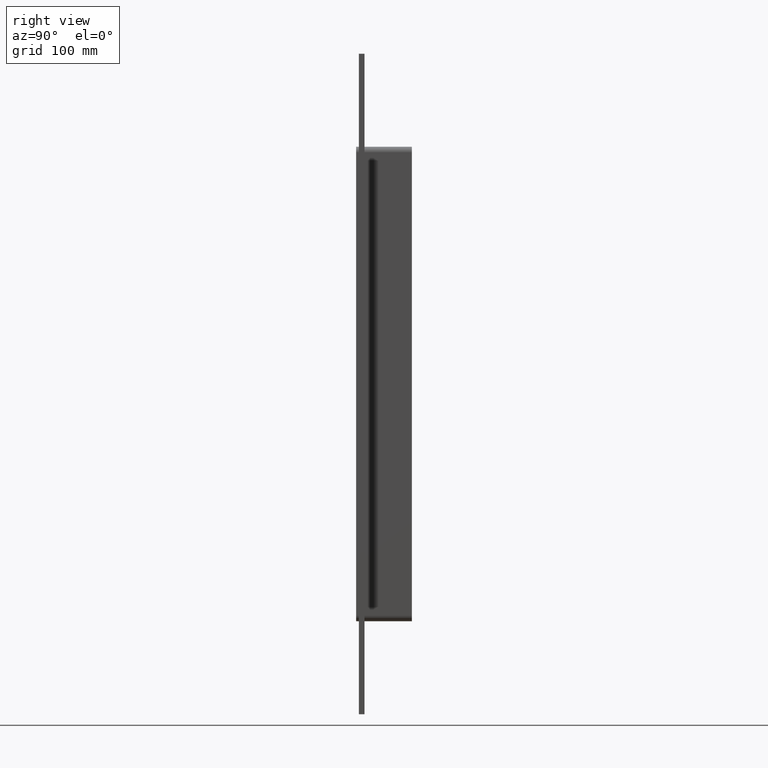
[diagram: clean part render]
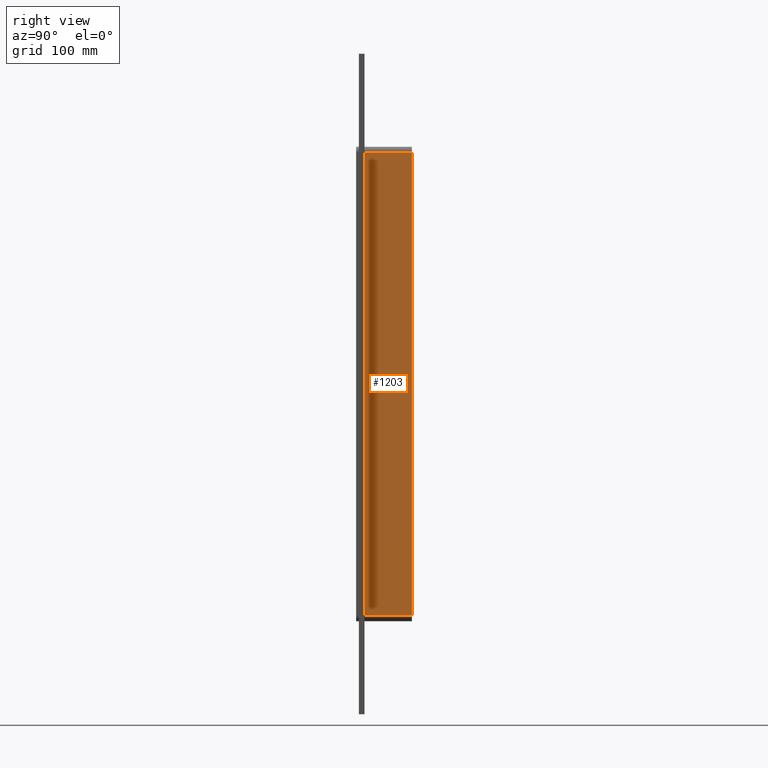
[diagram: same view with one face highlighted and labeled with its STEP entity id]
A machine part, right view. The second image highlights one B-rep face of the part: STEP entity #1203.
In plain terms, the highlighted planar face has unit normal (1, 0, 0).
Its self-contained STEP definition (entity closure, byte-faithful):
#795=CARTESIAN_POINT('',(66.25,6.000000000000001,-249.25));
#796=VERTEX_POINT('',#795);
#804=CARTESIAN_POINT('',(66.25,6.000000000000001,249.25));
#805=VERTEX_POINT('',#804);
#806=CARTESIAN_POINT('',(66.25,6.000000000000001,249.25));
#807=DIRECTION('',(0.0,0.0,-1.0));
#808=VECTOR('',#807,498.5);
#809=LINE('',#806,#808);
#810=EDGE_CURVE('',#805,#796,#809,.T.);
#1130=CARTESIAN_POINT('',(66.25,57.0,249.25));
#1131=VERTEX_POINT('',#1130);
#1132=CARTESIAN_POINT('',(66.25,6.000000000000001,249.25));
#1133=DIRECTION('',(0.0,1.0,0.0));
#1134=VECTOR('',#1133,51.0);
#1135=LINE('',#1132,#1134);
#1136=EDGE_CURVE('',#805,#1131,#1135,.T.);
#1180=CARTESIAN_POINT('',(66.25,0.0,255.25000000000003));
#1181=DIRECTION('',(1.0,0.0,0.0));
#1182=DIRECTION('',(0.0,0.0,-1.0));
#1183=AXIS2_PLACEMENT_3D('',#1180,#1181,#1182);
#1184=PLANE('',#1183);
#1185=ORIENTED_EDGE('',*,*,#810,.T.);
#1186=CARTESIAN_POINT('',(66.25,57.0,-249.25));
#1187=VERTEX_POINT('',#1186);
#1188=CARTESIAN_POINT('',(66.25,57.0,-249.25));
#1189=DIRECTION('',(0.0,-1.0,0.0));
#1190=VECTOR('',#1189,51.0);
#1191=LINE('',#1188,#1190);
#1192=EDGE_CURVE('',#1187,#796,#1191,.T.);
#1193=ORIENTED_EDGE('',*,*,#1192,.F.);
#1194=CARTESIAN_POINT('',(66.25,57.0,249.25));
#1195=DIRECTION('',(0.0,0.0,-1.0));
#1196=VECTOR('',#1195,498.5);
#1197=LINE('',#1194,#1196);
#1198=EDGE_CURVE('',#1131,#1187,#1197,.T.);
#1199=ORIENTED_EDGE('',*,*,#1198,.F.);
#1200=ORIENTED_EDGE('',*,*,#1136,.F.);
#1201=EDGE_LOOP('',(#1185,#1193,#1199,#1200));
#1202=FACE_OUTER_BOUND('',#1201,.T.);
#1203=ADVANCED_FACE('',(#1202),#1184,.T.);